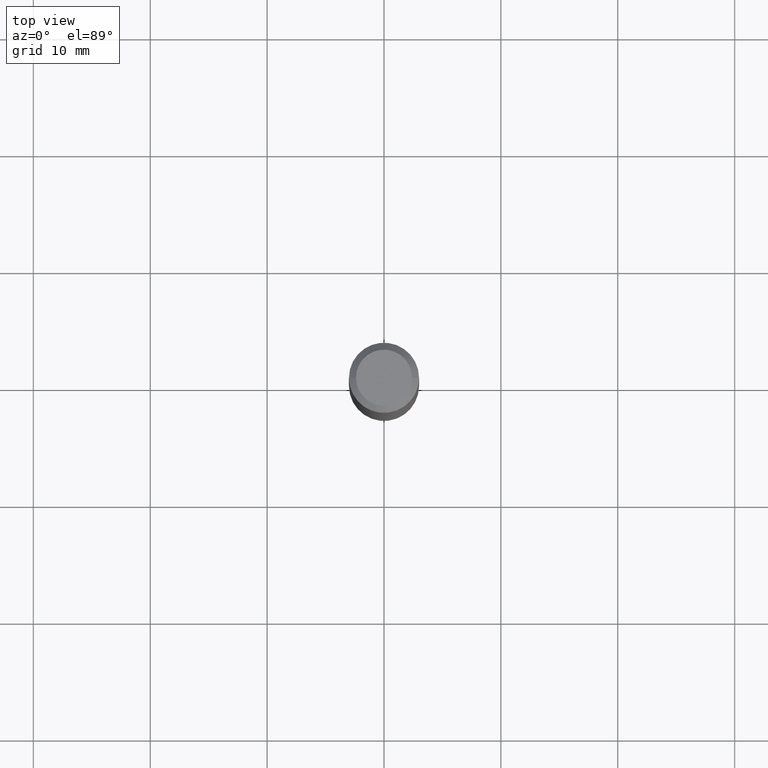
[diagram: clean part render]
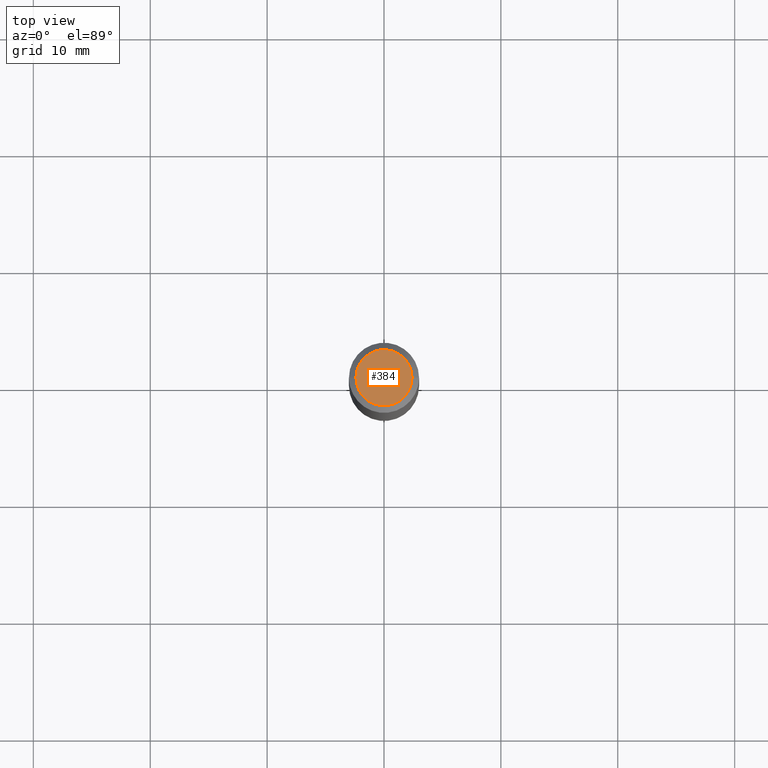
[diagram: same view with one face highlighted and labeled with its STEP entity id]
A machine part, top view. The second image highlights one B-rep face of the part: STEP entity #384.
In plain terms, the highlighted planar face has unit normal (0, -0, -1).
Its self-contained STEP definition (entity closure, byte-faithful):
#4 = VERTEX_POINT ( 'NONE', #164 ) ;
#7 = AXIS2_PLACEMENT_3D ( 'NONE', #369, #305, #172 ) ;
#25 = AXIS2_PLACEMENT_3D ( 'NONE', #215, #170, #136 ) ;
#39 = VERTEX_POINT ( 'NONE', #93 ) ;
#44 = FACE_OUTER_BOUND ( 'NONE', #271, .T. ) ;
#46 = CARTESIAN_POINT ( 'NONE',  ( 2.358133508849003952E-46, -3.366789680499277518E-32, -9.642868896486260050E-18 ) ) ;
#75 = AXIS2_PLACEMENT_3D ( 'NONE', #46, #197, #353 ) ;
#93 = CARTESIAN_POINT ( 'NONE',  ( 0.09447999999999998066, -7.704367267948738690E-16, -1.928573779296752193E-17 ) ) ;
#130 = ORIENTED_EDGE ( 'NONE', *, *, #422, .T. ) ;
#136 = DIRECTION ( 'NONE',  ( 1.000000000000000000, -6.982962677686267499E-15, 4.875432709231658792E-29 ) ) ;
#150 = CIRCLE ( 'NONE', #25, 0.09447999999999998066 ) ;
#164 = CARTESIAN_POINT ( 'NONE',  ( -0.09447999999999998066, 7.009847083995354710E-16, -1.928573779297727792E-17 ) ) ;
#170 = DIRECTION ( 'NONE',  ( -2.445468806185136597E-29, 3.491481338843145583E-15, 1.000000000000000000 ) ) ;
#172 = DIRECTION ( 'NONE',  ( 1.000000000000000000, -6.982962677686267499E-15, 4.875432709231658792E-29 ) ) ;
#179 = EDGE_CURVE ( 'NONE', #39, #4, #325, .T. ) ;
#197 = DIRECTION ( 'NONE',  ( 2.438088387897960049E-29, -3.491481338843145188E-15, -1.000000000000000000 ) ) ;
#215 = CARTESIAN_POINT ( 'NONE',  ( 4.716267017698007905E-46, -6.733579360998555036E-32, -1.928573779297252010E-17 ) ) ;
#271 = EDGE_LOOP ( 'NONE', ( #130, #292 ) ) ;
#292 = ORIENTED_EDGE ( 'NONE', *, *, #179, .T. ) ;
#305 = DIRECTION ( 'NONE',  ( -2.445468806185136597E-29, 3.491481338843145583E-15, 1.000000000000000000 ) ) ;
#325 = CIRCLE ( 'NONE', #7, 0.09447999999999998066 ) ;
#353 = DIRECTION ( 'NONE',  ( -1.000000000000000000, 6.982962677686265922E-15, -4.876176775795935793E-29 ) ) ;
#369 = CARTESIAN_POINT ( 'NONE',  ( 4.716267017698007905E-46, -6.733579360998555036E-32, -1.928573779297252010E-17 ) ) ;
#384 = ADVANCED_FACE ( 'NONE', ( #44 ), #388, .F. ) ;
#388 = PLANE ( 'NONE',  #75 ) ;
#422 = EDGE_CURVE ( 'NONE', #4, #39, #150, .T. ) ;